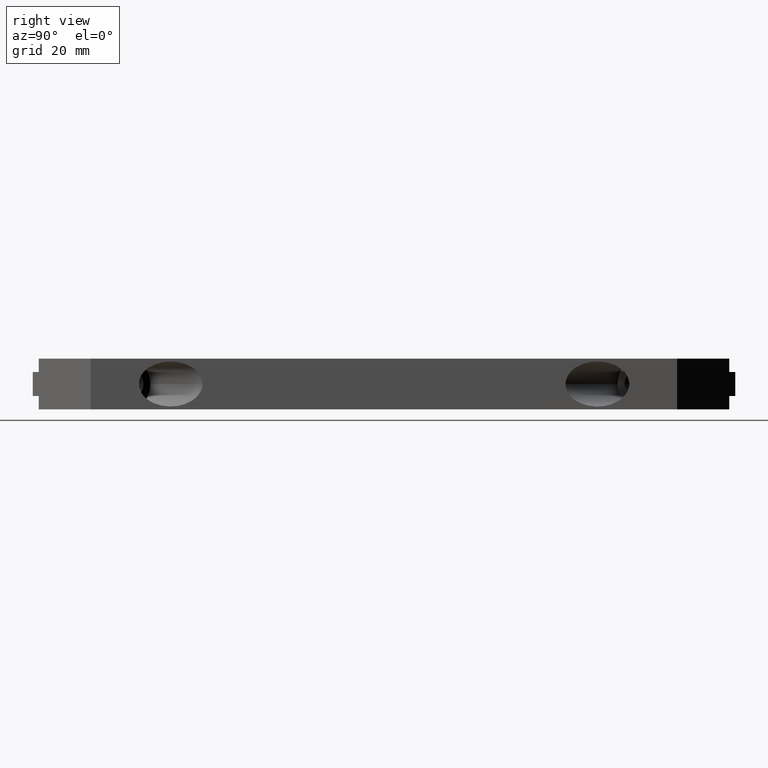
[diagram: clean part render]
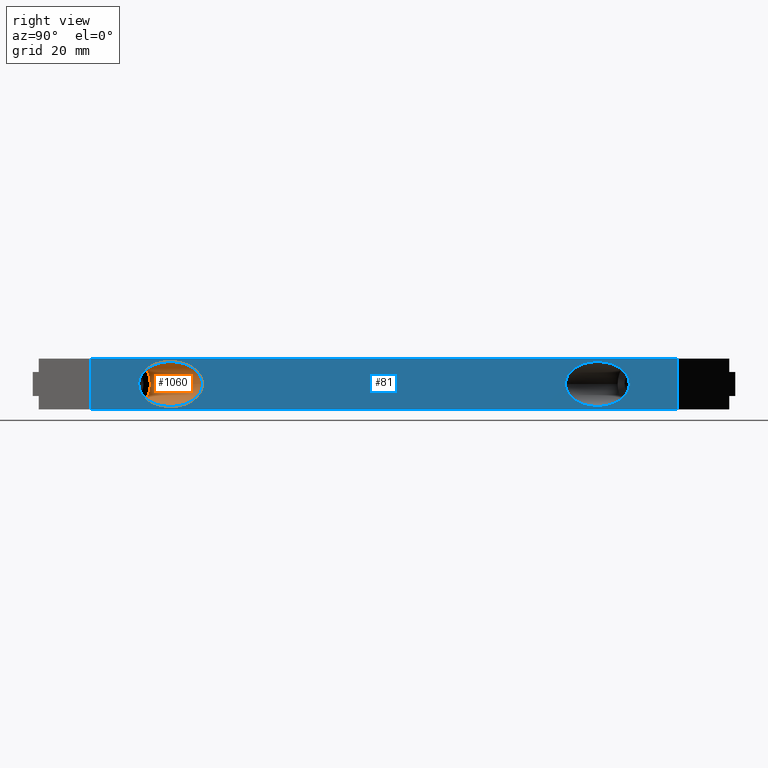
[diagram: same view with the hole feature highlighted: cylindrical wall and planar end face, labeled with their STEP entity ids]
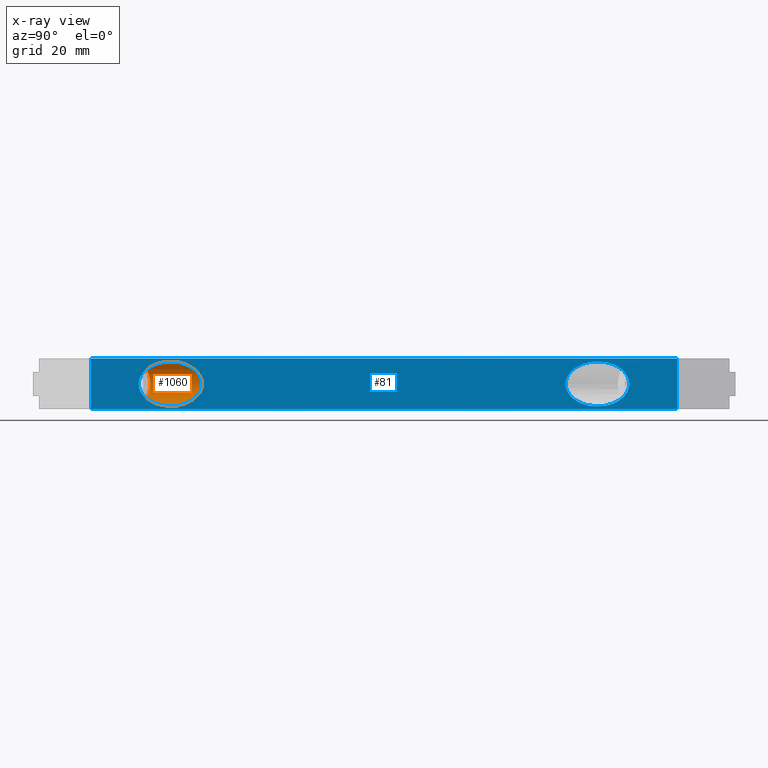
[diagram: x-ray of the same camera — body ghosted, the hole faces saturated]
A machine part, right view. The highlighted faces form one hole feature of diameter 16 mm: the cylindrical wall (entity #1060, orange) and its adjacent planar end face (entity #81, blue) — they share a circular edge in the B-rep.
The next image is the same camera in x-ray (body ghosted, the hole faces saturated) — the bore reads through the body.
Wall:
#61=CARTESIAN_POINT('',(69.999999999719904,-87.029438061061398,9.0));
#62=VERTEX_POINT('',#61);
#63=CARTESIAN_POINT('',(69.999999999719904,-64.402019999742350,9.0));
#64=VERTEX_POINT('',#63);
#65=CARTESIAN_POINT('',(69.999999999719904,-75.715729030401860,9.0));
#66=DIRECTION('',(1.0,1.366428E-016,0.0));
#67=DIRECTION('',(1.366428E-016,-1.0,0.0));
#68=AXIS2_PLACEMENT_3D('',#65,#66,#67);
#69=ELLIPSE('',#68,11.313709030659538,8.000000375950842);
#70=EDGE_CURVE('',#62,#64,#69,.T.);
#72=CARTESIAN_POINT('',(69.999999999719904,-75.715729030401860,9.0));
#73=DIRECTION('',(1.0,1.366428E-016,0.0));
#74=DIRECTION('',(1.366428E-016,-1.0,0.0));
#75=AXIS2_PLACEMENT_3D('',#72,#73,#74);
#76=ELLIPSE('',#75,11.313709030659538,8.000000375950842);
#77=EDGE_CURVE('',#64,#62,#76,.T.);
#1026=CARTESIAN_POINT('',(90.645532849472147,-55.070196180649617,9.0));
#1027=DIRECTION('',(0.707106781186548,0.707106781186548,0.0));
#1028=DIRECTION('',(-0.707106781186548,0.707106781186548,0.0));
#1029=AXIS2_PLACEMENT_3D('',#1026,#1027,#1028);
#1030=CYLINDRICAL_SURFACE('',#1029,8.000000375950842);
#1031=CARTESIAN_POINT('',(62.813709030453424,-94.215729030327836,9.0));
#1032=VERTEX_POINT('',#1031);
#1033=CARTESIAN_POINT('',(51.499999999793886,-82.902019999668369,9.0));
#1034=VERTEX_POINT('',#1033);
#1035=CARTESIAN_POINT('',(57.156854515123655,-88.558874514998109,9.0));
#1036=DIRECTION('',(0.707106781186545,0.707106781186550,0.0));
#1037=DIRECTION('',(-0.707106781186550,0.707106781186545,0.0));
#1038=AXIS2_PLACEMENT_3D('',#1035,#1036,#1037);
#1039=CIRCLE('',#1038,8.000000375950821);
#1040=EDGE_CURVE('',#1032,#1034,#1039,.T.);
#1041=ORIENTED_EDGE('',*,*,#1040,.F.);
#1042=CARTESIAN_POINT('',(57.156854515123655,-88.558874514998109,9.0));
#1043=DIRECTION('',(0.707106781186545,0.707106781186550,0.0));
#1044=DIRECTION('',(-0.707106781186550,0.707106781186545,0.0));
#1045=AXIS2_PLACEMENT_3D('',#1042,#1043,#1044);
#1046=CIRCLE('',#1045,8.000000375950821);
#1047=EDGE_CURVE('',#1034,#1032,#1046,.T.);
#1048=ORIENTED_EDGE('',*,*,#1047,.F.);
#1049=CARTESIAN_POINT('',(69.999999999719904,-64.402019999742350,9.0));
#1050=DIRECTION('',(-0.707106781186547,-0.707106781186548,0.0));
#1051=VECTOR('',#1050,26.162950903797654);
#1052=LINE('',#1049,#1051);
#1053=EDGE_CURVE('',#64,#1034,#1052,.T.);
#1054=ORIENTED_EDGE('',*,*,#1053,.F.);
#1055=ORIENTED_EDGE('',*,*,#77,.T.);
#1056=ORIENTED_EDGE('',*,*,#70,.T.);
#1057=ORIENTED_EDGE('',*,*,#1053,.T.);
#1058=EDGE_LOOP('',(#1041,#1048,#1054,#1055,#1056,#1057));
#1059=FACE_OUTER_BOUND('',#1058,.T.);
#1060=ADVANCED_FACE('',(#1059),#1030,.F.);
End face:
#2=CARTESIAN_POINT('',(69.999999999719904,-103.999999999584390,18.0));
#3=DIRECTION('',(-1.0,0.0,0.0));
#4=DIRECTION('',(0.0,1.0,0.0));
#5=AXIS2_PLACEMENT_3D('',#2,#3,#4);
#6=PLANE('',#5);
#7=CARTESIAN_POINT('',(69.999999999719904,-103.999999999584390,18.0));
#8=VERTEX_POINT('',#7);
#9=CARTESIAN_POINT('',(69.999999999719904,-103.999999999584390,0.0));
#10=VERTEX_POINT('',#9);
#11=CARTESIAN_POINT('',(69.999999999719904,-103.999999999584390,18.0));
#12=DIRECTION('',(0.0,0.0,-1.0));
#13=VECTOR('',#12,18.0);
#14=LINE('',#11,#13);
#15=EDGE_CURVE('',#8,#10,#14,.T.);
#16=ORIENTED_EDGE('',*,*,#15,.T.);
#17=CARTESIAN_POINT('',(69.999999999719876,103.999999999583680,0.0));
#18=VERTEX_POINT('',#17);
#19=CARTESIAN_POINT('',(69.999999999719904,-103.999999999584390,0.0));
#20=DIRECTION('',(0.0,1.0,0.0));
#21=VECTOR('',#20,207.999999999168070);
#22=LINE('',#19,#21);
#23=EDGE_CURVE('',#10,#18,#22,.T.);
#24=ORIENTED_EDGE('',*,*,#23,.T.);
#25=CARTESIAN_POINT('',(69.999999999719876,103.999999999583680,18.0));
#26=VERTEX_POINT('',#25);
#27=CARTESIAN_POINT('',(69.999999999719876,103.999999999583680,18.0));
#28=DIRECTION('',(0.0,0.0,-1.0));
#29=VECTOR('',#28,18.0);
#30=LINE('',#27,#29);
#31=EDGE_CURVE('',#26,#18,#30,.T.);
#32=ORIENTED_EDGE('',*,*,#31,.F.);
#33=CARTESIAN_POINT('',(69.999999999719904,-103.999999999584390,18.0));
#34=DIRECTION('',(0.0,1.0,0.0));
#35=VECTOR('',#34,207.999999999168070);
#36=LINE('',#33,#35);
#37=EDGE_CURVE('',#8,#26,#36,.T.);
#38=ORIENTED_EDGE('',*,*,#37,.F.);
#39=EDGE_LOOP('',(#16,#24,#32,#38));
#40=FACE_OUTER_BOUND('',#39,.T.);
#41=CARTESIAN_POINT('',(69.999999999719904,87.029438061060603,9.0));
#42=VERTEX_POINT('',#41);
#43=CARTESIAN_POINT('',(69.999999999719904,64.402019999743459,9.0));
#44=VERTEX_POINT('',#43);
#45=CARTESIAN_POINT('',(69.999999999719904,75.715729030401292,9.0));
#46=DIRECTION('',(1.0,1.366428E-016,0.0));
#47=DIRECTION('',(1.366428E-016,-1.0,0.0));
#48=AXIS2_PLACEMENT_3D('',#45,#46,#47);
#49=ELLIPSE('',#48,11.313709030659313,8.000000375950680);
#50=EDGE_CURVE('',#42,#44,#49,.T.);
#51=ORIENTED_EDGE('',*,*,#50,.F.);
#52=CARTESIAN_POINT('',(69.999999999719904,75.715729030401292,9.0));
#53=DIRECTION('',(1.0,1.366428E-016,0.0));
#54=DIRECTION('',(1.366428E-016,-1.0,0.0));
#55=AXIS2_PLACEMENT_3D('',#52,#53,#54);
#56=ELLIPSE('',#55,11.313709030659313,8.000000375950680);
#57=EDGE_CURVE('',#44,#42,#56,.T.);
#58=ORIENTED_EDGE('',*,*,#57,.F.);
#59=EDGE_LOOP('',(#51,#58));
#60=FACE_BOUND('',#59,.T.);
#61=CARTESIAN_POINT('',(69.999999999719904,-87.029438061061398,9.0));
#62=VERTEX_POINT('',#61);
#63=CARTESIAN_POINT('',(69.999999999719904,-64.402019999742350,9.0));
#64=VERTEX_POINT('',#63);
#65=CARTESIAN_POINT('',(69.999999999719904,-75.715729030401860,9.0));
#66=DIRECTION('',(1.0,1.366428E-016,0.0));
#67=DIRECTION('',(1.366428E-016,-1.0,0.0));
#68=AXIS2_PLACEMENT_3D('',#65,#66,#67);
#69=ELLIPSE('',#68,11.313709030659538,8.000000375950842);
#70=EDGE_CURVE('',#62,#64,#69,.T.);
#71=ORIENTED_EDGE('',*,*,#70,.F.);
#72=CARTESIAN_POINT('',(69.999999999719904,-75.715729030401860,9.0));
#73=DIRECTION('',(1.0,1.366428E-016,0.0));
#74=DIRECTION('',(1.366428E-016,-1.0,0.0));
#75=AXIS2_PLACEMENT_3D('',#72,#73,#74);
#76=ELLIPSE('',#75,11.313709030659538,8.000000375950842);
#77=EDGE_CURVE('',#64,#62,#76,.T.);
#78=ORIENTED_EDGE('',*,*,#77,.F.);
#79=EDGE_LOOP('',(#71,#78));
#80=FACE_BOUND('',#79,.T.);
#81=ADVANCED_FACE('',(#40,#60,#80),#6,.F.);